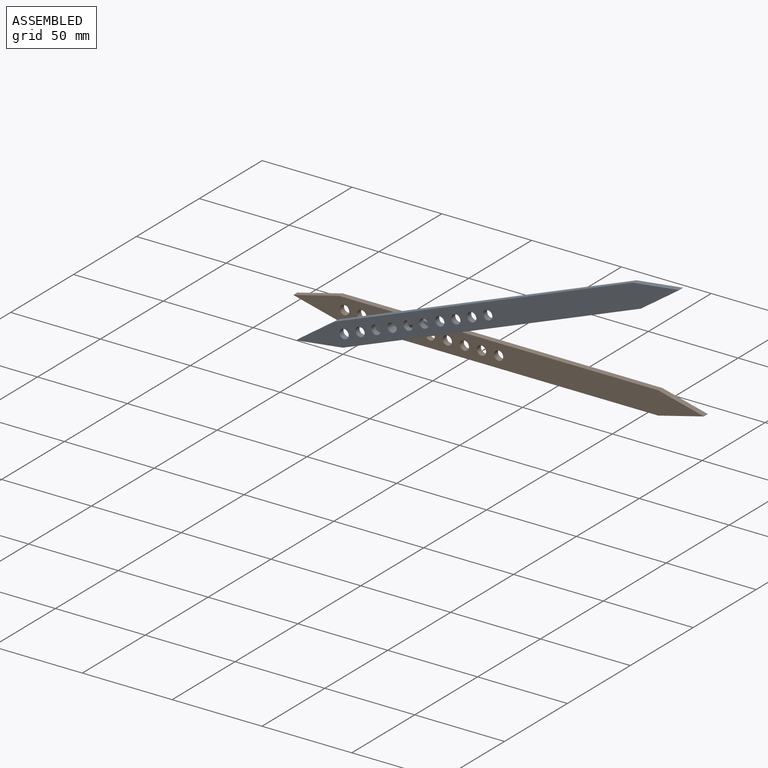
[diagram: assembled view]
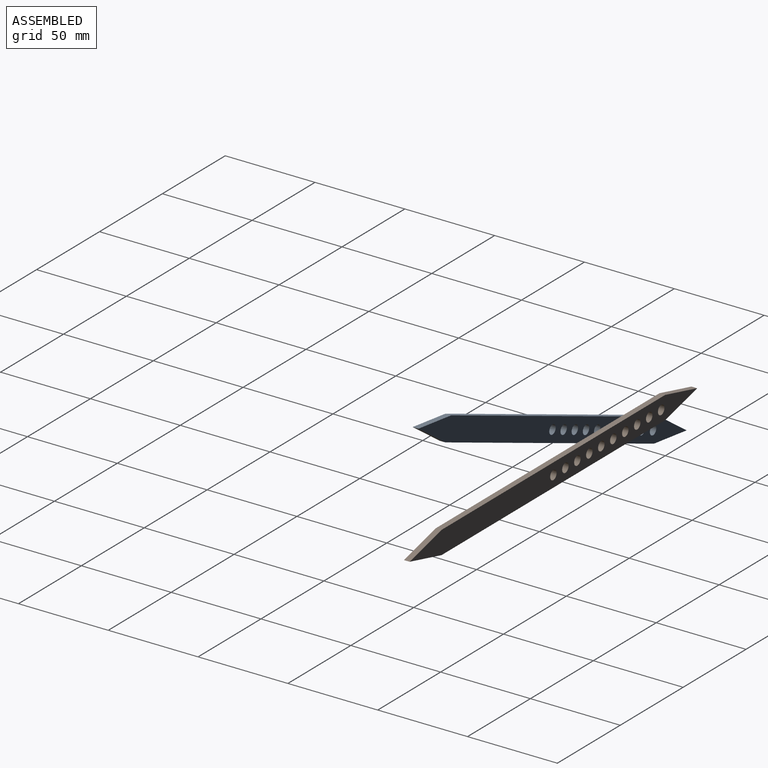
[diagram: assembled view, second angle]
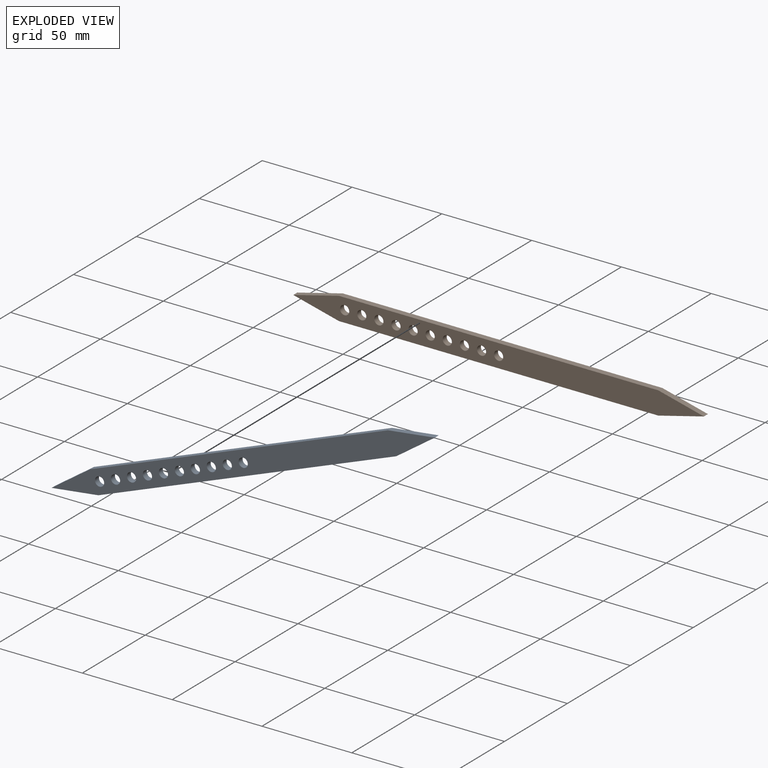
[diagram: exploded view]
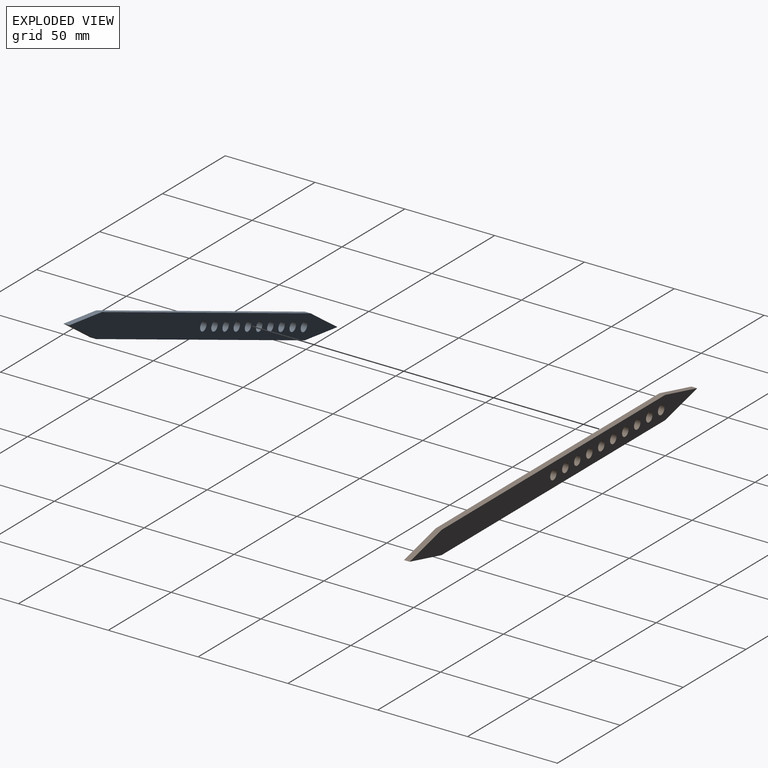
[diagram: exploded view, second angle]
ASSEMBLY  parts=2 mates=2
PART A: 18 faces, bbox 228.6x3.2x12.7 mm
  f0: plane 177.8x3.18mm, normal (0,0,1), area 564.5mm2, adj f1,f5,f6,f7
  f1: plane 25.4x6.35mm, normal (-0.24,0,0.97), area 83.1mm2, adj f0,f2,f6,f7
  f2: plane 25.4x6.35mm, normal (-0.24,0,-0.97), area 83.1mm2, adj f1,f3,f6,f7
  f3: plane 177.8x3.18mm, normal (0,0,-1), area 564.5mm2, adj f2,f4,f6,f7
  f4: plane 25.4x6.35mm, normal (0.24,0,-0.97), area 83.1mm2, adj f3,f5,f6,f7
  f5: plane 25.4x6.35mm, normal (0.24,0,0.97), area 83.1mm2, adj f0,f4,f6,f7
  f6: plane 228.6x12.7mm, normal (0,-1,0), area 2375.9mm2, adj f0,f1,f2,f3,f4,f5,f8,f9
  f7: plane 228.6x12.7mm, normal (0,1,0), area 2375.9mm2, adj f0,f1,f2,f3,f4,f5,f8,f9
  f8: cylinder r=2.55mm len=5.11mm, axis (0,-1,0), area 50.9mm2, adj f6,f7
  f9: cylinder r=2.55mm len=5.11mm, axis (0,-1,0), area 50.9mm2, adj f6,f7
  f10: cylinder r=2.55mm len=5.11mm, axis (0,-1,0), area 50.9mm2, adj f6,f7
  f11: cylinder r=2.55mm len=5.11mm, axis (0,-1,0), area 50.9mm2, adj f6,f7
  f12: cylinder r=2.55mm len=5.11mm, axis (0,-1,0), area 50.9mm2, adj f6,f7
  f13: cylinder r=2.55mm len=5.11mm, axis (0,-1,0), area 50.9mm2, adj f6,f7
  f14: cylinder r=2.55mm len=5.11mm, axis (0,-1,0), area 50.9mm2, adj f6,f7
  f15: cylinder r=2.55mm len=5.11mm, axis (0,-1,0), area 50.9mm2, adj f6,f7
  f16: cylinder r=2.55mm len=5.11mm, axis (0,-1,0), area 50.9mm2, adj f6,f7
  f17: cylinder r=2.55mm len=5.11mm, axis (0,-1,0), area 50.9mm2, adj f6,f7
PART B: same geometry as A
PLACE A rot(axis=(0.98,0,0.18),180deg) t=(85.07,-6.35,14.22)mm
PLACE B t=(88.9,0,-6.35)mm
MATE planar A.f6 <-> B.f6  axis (0,1,0) through (88.51,-3.18,15.55)mm
MATE cylindrical A.f14 <-> B.f14  axis (0,-1,0) through (31.75,-6.35,-6.35)mm
